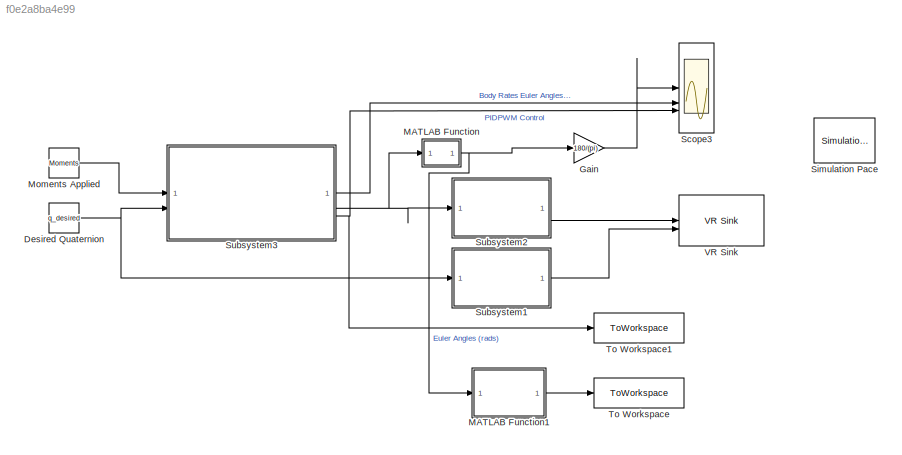
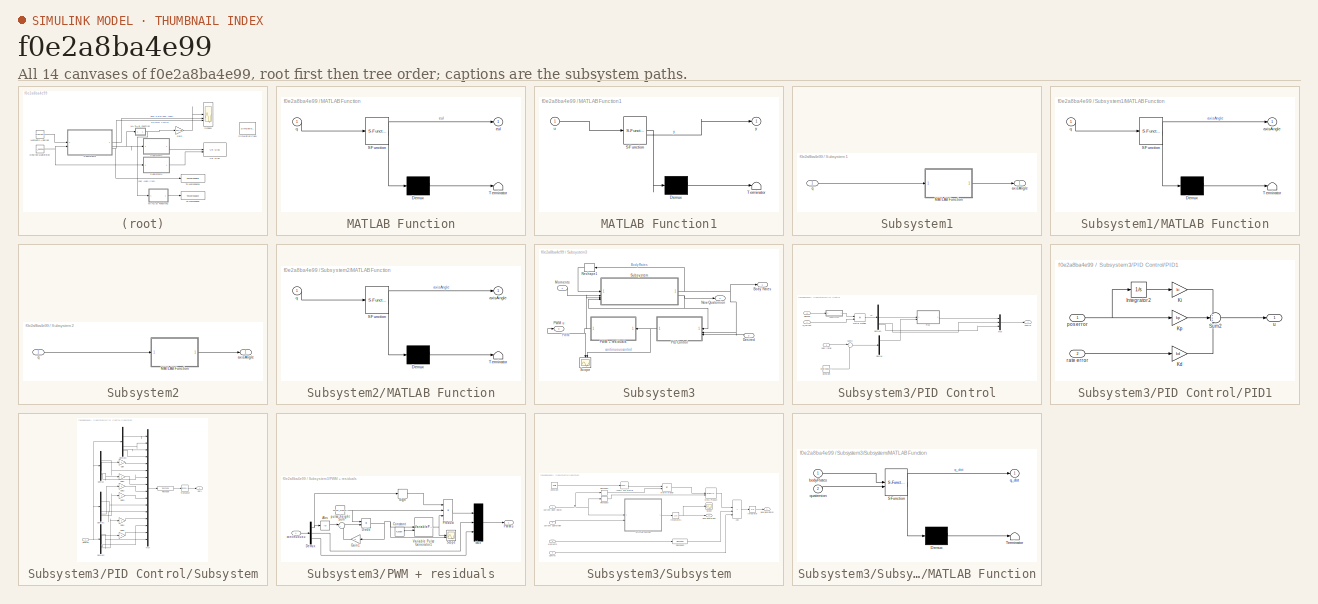
[diagram: thumbnail index - all 14 canvases of the model, root first then tree order]
MODEL slx_f0e2a8ba4e99
KIND model
CONFIG AbsTol = auto
CONFIG EnableMultiTasking = off
CONFIG FixedStep = auto
CONFIG MaxStep = auto
CONFIG MinStep = auto
CONFIG RelTol = 1e-3
CONFIG SampleTimeConstraint = Unconstrained
CONFIG SolverName = VariableStepAuto
CONFIG StartTime = 0.0
CONFIG StopTime = 4
BLOCK [Constant] Desired Quaternion
  Value = q_desired
BLOCK [Gain] Gain
  Gain = 180/(pi)
BLOCK [SubSystem] MATLAB Function
  ErrorFcn = Stateflow.Translate.translate
  PermitHierarchicalResolution = ExplicitOnly
  SFBlockType = MATLAB Function
  TreatAsAtomicUnit = on
BLOCK [Demux] MATLAB Function/ Demux 
  Outputs = 1
BLOCK [S-Function] MATLAB Function/ SFunction 
  EnableBusSupport = on
  FunctionName = sf_sfun
  PortCounts = [1 2]
  SFcnIsStateOwnerBlock = off
  SFunctionDeploymentMode = off
  Tag = Stateflow S-Function 3
BLOCK [Terminator] MATLAB Function/ Terminator 
BLOCK [Outport] MATLAB Function/eul
BLOCK [Inport] MATLAB Function/q
BLOCK [SubSystem] MATLAB Function1
  ErrorFcn = Stateflow.Translate.translate
  PermitHierarchicalResolution = ExplicitOnly
  SFBlockType = MATLAB Function
  TreatAsAtomicUnit = on
BLOCK [Demux] MATLAB Function1/ Demux 
  Outputs = 1
BLOCK [S-Function] MATLAB Function1/ SFunction 
  EnableBusSupport = on
  FunctionName = sf_sfun
  PortCounts = [1 2]
  SFcnIsStateOwnerBlock = off
  SFunctionDeploymentMode = off
  Tag = Stateflow S-Function 2
BLOCK [Terminator] MATLAB Function1/ Terminator 
BLOCK [Inport] MATLAB Function1/u
BLOCK [Outport] MATLAB Function1/y
BLOCK [Constant] Moments Applied
  Value = Moments
BLOCK [Scope] Scope3
  Floating = off
  NumInputPorts = 3
  ScopeSpecificationString = Simulink.scopes.TimeScopeBlockCfg('CurrentConfiguration', extmgr.ConfigurationSet(extmgr.Configuration('Core','General UI',true,'FigureColor',[1 1 1]),extmgr.Configuration('Core','Source UI',true),extmgr.Configuration('Sources','WiredSimulink',true),extmgr.Configuration('Visuals','Time Domain',true,'PlotType','Stairs','SerializedDisplays',{struct('MinYLimReal','-22.5','MaxYLimReal','202.5','YLabel...<+3243ch>
BLOCK [Reference] Simulation Pace  REF=aerolibanimutils/Simulation Pace
  AttributesFormatString = %<SleepMode>\n%<SimulationPace> sec/sec
  Commented = on
  SourceBlock = aerolibanimutils/Simulation Pace
  SourceType = Simulation Pace
BLOCK [SubSystem] Subsystem1
BLOCK [SubSystem] Subsystem1/MATLAB Function
  ErrorFcn = Stateflow.Translate.translate
  PermitHierarchicalResolution = ExplicitOnly
  SFBlockType = MATLAB Function
  TreatAsAtomicUnit = on
BLOCK [Demux] Subsystem1/MATLAB Function/ Demux 
  Outputs = 1
BLOCK [S-Function] Subsystem1/MATLAB Function/ SFunction 
  EnableBusSupport = on
  FunctionName = sf_sfun
  PortCounts = [1 2]
  SFcnIsStateOwnerBlock = off
  SFunctionDeploymentMode = off
  Tag = Stateflow S-Function 1
BLOCK [Terminator] Subsystem1/MATLAB Function/ Terminator 
BLOCK [Outport] Subsystem1/MATLAB Function/axisAngle
BLOCK [Inport] Subsystem1/MATLAB Function/q
BLOCK [Outport] Subsystem1/axisAngle
BLOCK [Inport] Subsystem1/q
BLOCK [SubSystem] Subsystem2
BLOCK [SubSystem] Subsystem2/MATLAB Function
  ErrorFcn = Stateflow.Translate.translate
  PermitHierarchicalResolution = ExplicitOnly
  SFBlockType = MATLAB Function
  TreatAsAtomicUnit = on
BLOCK [Demux] Subsystem2/MATLAB Function/ Demux 
  Outputs = 1
BLOCK [S-Function] Subsystem2/MATLAB Function/ SFunction 
  EnableBusSupport = on
  FunctionName = sf_sfun
  PortCounts = [1 2]
  SFcnIsStateOwnerBlock = off
  SFunctionDeploymentMode = off
  Tag = Stateflow S-Function 5
BLOCK [Terminator] Subsystem2/MATLAB Function/ Terminator 
BLOCK [Outport] Subsystem2/MATLAB Function/axisAngle
BLOCK [Inport] Subsystem2/MATLAB Function/q
BLOCK [Outport] Subsystem2/axisAngle
BLOCK [Inport] Subsystem2/q
BLOCK [SubSystem] Subsystem3
BLOCK [Outport] Subsystem3/Body Rates
BLOCK [Inport] Subsystem3/Desired
  Port = 2
BLOCK [Inport] Subsystem3/Moments
BLOCK [Outport] Subsystem3/New Quaternion
  Port = 2
BLOCK [SubSystem] Subsystem3/PID Control
BLOCK [Constant] Subsystem3/PID Control/Constant
  Value = desiredBodyRates
BLOCK [Outport] Subsystem3/PID Control/Control
BLOCK [Demux] Subsystem3/PID Control/Demux
  Outputs = 3
BLOCK [Demux] Subsystem3/PID Control/Demux1
BLOCK [Inport] Subsystem3/PID Control/Desired
  Port = 3
BLOCK [Product] Subsystem3/PID Control/Matrix Multiply
  Multiplication = Matrix(*)
BLOCK [Mux] Subsystem3/PID Control/Mux
  DisplayOption = bar
  Inputs = 3
BLOCK [SubSystem] Subsystem3/PID Control/PID1
BLOCK [Integrator] Subsystem3/PID Control/PID1/Integrator2
BLOCK [Gain] Subsystem3/PID Control/PID1/Kd
  Gain = kd
BLOCK [Gain] Subsystem3/PID Control/PID1/Ki
  Gain = ki
BLOCK [Gain] Subsystem3/PID Control/PID1/Kp
  Gain = kp
BLOCK [Sum] Subsystem3/PID Control/PID1/Sum2
  Inputs = +++
BLOCK [Inport] Subsystem3/PID Control/PID1/pos error
BLOCK [Inport] Subsystem3/PID Control/PID1/rate error
  Port = 2
BLOCK [Outport] Subsystem3/PID Control/PID1/u
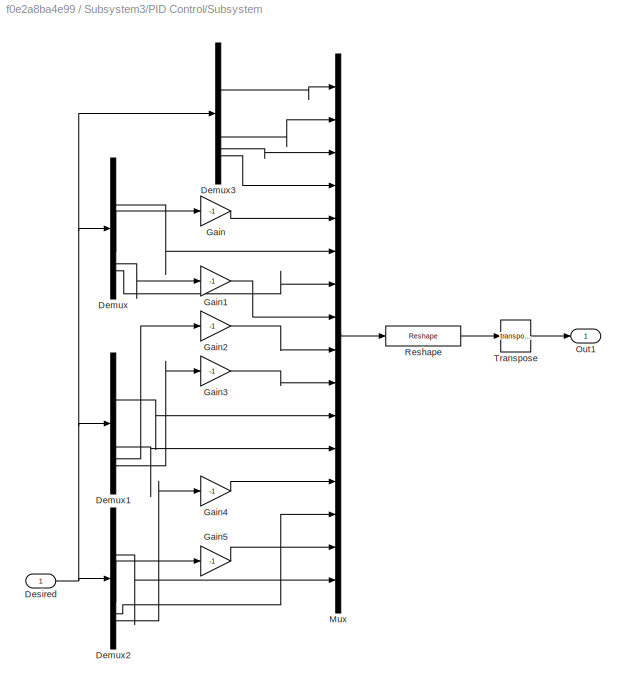
BLOCK [SubSystem] Subsystem3/PID Control/Subsystem
BLOCK [Demux] Subsystem3/PID Control/Subsystem/Demux
BLOCK [Demux] Subsystem3/PID Control/Subsystem/Demux1
BLOCK [Demux] Subsystem3/PID Control/Subsystem/Demux2
BLOCK [Demux] Subsystem3/PID Control/Subsystem/Demux3
BLOCK [Inport] Subsystem3/PID Control/Subsystem/Desired
BLOCK [Gain] Subsystem3/PID Control/Subsystem/Gain
  Gain = -1
BLOCK [Gain] Subsystem3/PID Control/Subsystem/Gain1
  Gain = -1
BLOCK [Gain] Subsystem3/PID Control/Subsystem/Gain2
  Gain = -1
BLOCK [Gain] Subsystem3/PID Control/Subsystem/Gain3
  Gain = -1
BLOCK [Gain] Subsystem3/PID Control/Subsystem/Gain4
  Gain = -1
BLOCK [Gain] Subsystem3/PID Control/Subsystem/Gain5
  Gain = -1
BLOCK [Mux] Subsystem3/PID Control/Subsystem/Mux
  DisplayOption = bar
  Inputs = 16
BLOCK [Outport] Subsystem3/PID Control/Subsystem/Out1
BLOCK [Reshape] Subsystem3/PID Control/Subsystem/Reshape
  OutputDimensionality = Customize
  OutputDimensions = [4,4]
BLOCK [Math] Subsystem3/PID Control/Subsystem/Transpose
  Operator = transpose
BLOCK [Sum] Subsystem3/PID Control/Sum3
  Inputs = |+-
BLOCK [Inport] Subsystem3/PID Control/body rates
  Port = 2
BLOCK [Inport] Subsystem3/PID Control/q_current
BLOCK [SubSystem] Subsystem3/PWM + residuals
BLOCK [Abs] Subsystem3/PWM + residuals/Abs
  SaturateOnIntegerOverflow = off
BLOCK [Constant] Subsystem3/PWM + residuals/Constant
  Value = P_pulse
BLOCK [Demux] Subsystem3/PWM + residuals/Demux
  Outputs = 3
BLOCK [Product] Subsystem3/PWM + residuals/Divide
  Inputs = /*
BLOCK [Gain] Subsystem3/PWM + residuals/Gain1
  NameLocation = top
BLOCK [Mux] Subsystem3/PWM + residuals/Mux
  DisplayOption = bar
  Inputs = 3
BLOCK [Outport] Subsystem3/PWM + residuals/PWM u
BLOCK [Product] Subsystem3/PWM + residuals/Product
  Inputs = 3
BLOCK [Scope] Subsystem3/PWM + residuals/Scope
  Floating = off
  NumInputPorts = 2
  ScopeSpecificationString = Simulink.scopes.TimeScopeBlockCfg('CurrentConfiguration', extmgr.ConfigurationSet(extmgr.Configuration('Core','General UI',true),extmgr.Configuration('Core','Source UI',true),extmgr.Configuration('Sources','WiredSimulink',true,'DataLoggingVariableName','ScopeData4'),extmgr.Configuration('Visuals','Time Domain',true,'SerializedDisplays',{struct('MinYLimReal','-11.87141','MaxYLimReal','94.9871','YLa...<+1559ch>
BLOCK [Signum] Subsystem3/PWM + residuals/Sign
BLOCK [Sum] Subsystem3/PWM + residuals/Sum
  Inputs = |++
BLOCK [VariablePulseGenerator] Subsystem3/PWM + residuals/Variable Pulse Generator1
  AllowZeroPulseWidth = on
  SampleTime = 0.1
BLOCK [Inport] Subsystem3/PWM + residuals/continuous u
BLOCK [Constant] Subsystem3/PWM + residuals/pulse height
  Value = Thrust_Moment
BLOCK [Outport] Subsystem3/PWM u
  Port = 3
BLOCK [Reshape] Subsystem3/Reshape1
  OutputDimensionality = Customize
  OutputDimensions = [1,3]
BLOCK [Scope] Subsystem3/Scope
  Floating = off
  NameLocation = left
  NumInputPorts = 2
  ScopeSpecificationString = Simulink.scopes.TimeScopeBlockCfg('CurrentConfiguration', extmgr.ConfigurationSet(extmgr.Configuration('Core','General UI',true),extmgr.Configuration('Core','Source UI',true),extmgr.Configuration('Sources','WiredSimulink',true,'DataLoggingVariableName','ScopeData1'),extmgr.Configuration('Visuals','Time Domain',true,'SerializedDisplays',{struct('MinYLimReal','-62.5','MaxYLimReal','62.5','YLabelReal...<+1524ch>
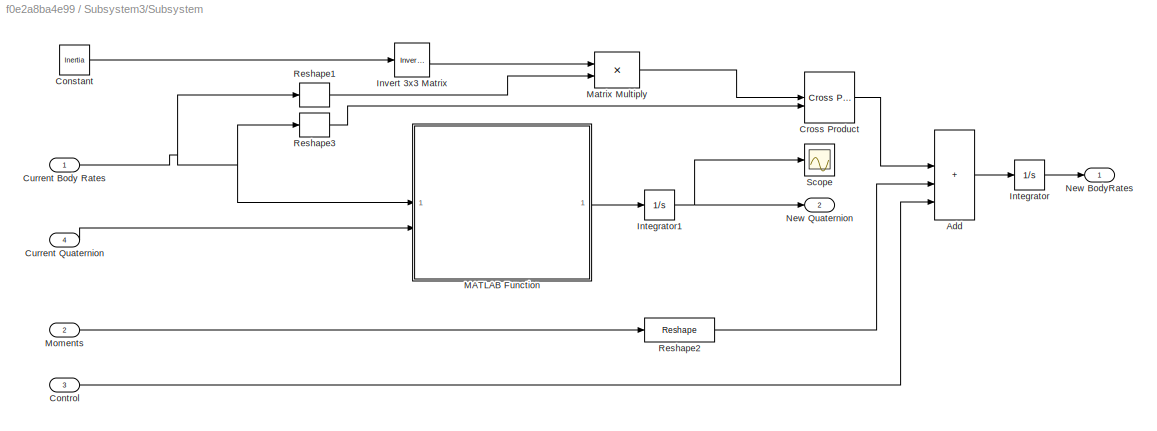
BLOCK [SubSystem] Subsystem3/Subsystem
BLOCK [Sum] Subsystem3/Subsystem/Add
  IconShape = rectangular
  Inputs = ++++
BLOCK [Constant] Subsystem3/Subsystem/Constant
  Value = Inertia
BLOCK [Inport] Subsystem3/Subsystem/Control
  Port = 3
BLOCK [Reference] Subsystem3/Subsystem/Cross Product  REF=matrix_library/Cross Product
  SourceBlock = matrix_library/Cross Product
  SourceType = CrossProduct
BLOCK [Inport] Subsystem3/Subsystem/Current Body Rates
BLOCK [Inport] Subsystem3/Subsystem/Current Quaternion
  Port = 4
BLOCK [Integrator] Subsystem3/Subsystem/Integrator
  InitialCondition = pqr_0
BLOCK [Integrator] Subsystem3/Subsystem/Integrator1
  InitialCondition = q_0
BLOCK [Reference] Subsystem3/Subsystem/Invert 3x3 Matrix  REF=aerolibutil/Invert 
3x3 Matrix
  SourceBlock = aerolibutil/Invert \n3x3 Matrix
  SourceType = Invert 3x3 Matrix
BLOCK [SubSystem] Subsystem3/Subsystem/MATLAB Function
  ErrorFcn = Stateflow.Translate.translate
  PermitHierarchicalResolution = ExplicitOnly
  SFBlockType = MATLAB Function
  TreatAsAtomicUnit = on
BLOCK [Demux] Subsystem3/Subsystem/MATLAB Function/ Demux 
  Outputs = 1
BLOCK [S-Function] Subsystem3/Subsystem/MATLAB Function/ SFunction 
  EnableBusSupport = on
  FunctionName = sf_sfun
  PortCounts = [2 2]
  SFcnIsStateOwnerBlock = off
  SFunctionDeploymentMode = off
  Tag = Stateflow S-Function 8
BLOCK [Terminator] Subsystem3/Subsystem/MATLAB Function/ Terminator 
BLOCK [Inport] Subsystem3/Subsystem/MATLAB Function/bodyRates
BLOCK [Outport] Subsystem3/Subsystem/MATLAB Function/q_dot
BLOCK [Inport] Subsystem3/Subsystem/MATLAB Function/quaternion
  Port = 2
BLOCK [Product] Subsystem3/Subsystem/Matrix Multiply
  Multiplication = Matrix(*)
BLOCK [Inport] Subsystem3/Subsystem/Moments
  Port = 2
BLOCK [Outport] Subsystem3/Subsystem/New BodyRates
BLOCK [Outport] Subsystem3/Subsystem/New Quaternion
  Port = 2
BLOCK [Reshape] Subsystem3/Subsystem/Reshape1
  OutputDimensionality = Customize
  OutputDimensions = [3,1]
BLOCK [Reshape] Subsystem3/Subsystem/Reshape2
  OutputDimensionality = Customize
  OutputDimensions = [3,1]
BLOCK [Reshape] Subsystem3/Subsystem/Reshape3
  OutputDimensionality = Customize
  OutputDimensions = [3,1]
BLOCK [Scope] Subsystem3/Subsystem/Scope
  Floating = off
  NumInputPorts = 1
  ScopeSpecificationString = Simulink.scopes.TimeScopeBlockCfg('CurrentConfiguration', extmgr.ConfigurationSet(extmgr.Configuration('Core','General UI',true),extmgr.Configuration('Core','Source UI',true),extmgr.Configuration('Sources','WiredSimulink',true,'DataLoggingVariableName','ScopeData1'),extmgr.Configuration('Visuals','Time Domain',true,'SerializedDisplays',{struct('MinYLimReal','-0.125','MaxYLimReal','1.125','YLabelRe...<+1586ch>
BLOCK [ToWorkspace] To Workspace
  FixptAsFi = on
  MaxDataPoints = inf
  SampleTime = -1
  SaveFormat = Timeseries
  VariableName = eulerVsT
BLOCK [ToWorkspace] To Workspace1
  FixptAsFi = on
  MaxDataPoints = inf
  SampleTime = -1
  SaveFormat = Timeseries
  VariableName = Control
BLOCK [Reference] VR Sink  REF=vrlib/VR Sink
  InstantiateOnLoad = on
  SourceBlock = vrlib/VR Sink
  SourceType = Virtual Reality Sink
NET Desired Quaternion:1 -> Subsystem1:1, Subsystem3:2
LINE Gain:1 -> Scope3:1
LINE MATLAB Function1:1 -> To Workspace:1
NET MATLAB Function:1 -> Gain:1, MATLAB Function1:1
LINE Moments Applied:1 -> Subsystem3:1
LINE Subsystem1/MATLAB Function:1 -> Subsystem1/axisAngle:1
LINE Subsystem1/q:1 -> Subsystem1/MATLAB Function:1
LINE Subsystem1:1 -> VR Sink:2
LINE Subsystem2/MATLAB Function:1 -> Subsystem2/axisAngle:1
LINE Subsystem2/q:1 -> Subsystem2/MATLAB Function:1
LINE Subsystem2:1 -> VR Sink:1
LINE Subsystem3/Desired:1 -> Subsystem3/PID Control:3
LINE Subsystem3/Moments:1 -> Subsystem3/Subsystem:2
LINE Subsystem3/PID Control/Constant:1 -> Subsystem3/PID Control/Sum3:2
LINE Subsystem3/PID Control/Demux1:2 -> Subsystem3/PID Control/PID1:1
LINE Subsystem3/PID Control/Demux1:3 -> Subsystem3/PID Control/Mux:2
LINE Subsystem3/PID Control/Demux1:4 -> Subsystem3/PID Control/Mux:3
LINE Subsystem3/PID Control/Demux:1 -> Subsystem3/PID Control/PID1:2
LINE Subsystem3/PID Control/Desired:1 -> Subsystem3/PID Control/Subsystem:1
LINE Subsystem3/PID Control/Matrix Multiply:1 -> Subsystem3/PID Control/Demux1:1
LINE Subsystem3/PID Control/Mux:1 -> Subsystem3/PID Control/Control:1
LINE Subsystem3/PID Control/PID1/Integrator2:1 -> Subsystem3/PID Control/PID1/Ki:1
LINE Subsystem3/PID Control/PID1/Kd:1 -> Subsystem3/PID Control/PID1/Sum2:3
LINE Subsystem3/PID Control/PID1/Ki:1 -> Subsystem3/PID Control/PID1/Sum2:1
LINE Subsystem3/PID Control/PID1/Kp:1 -> Subsystem3/PID Control/PID1/Sum2:2
LINE Subsystem3/PID Control/PID1/Sum2:1 -> Subsystem3/PID Control/PID1/u:1
NET Subsystem3/PID Control/PID1/pos error:1 -> Subsystem3/PID Control/PID1/Integrator2:1, Subsystem3/PID Control/PID1/Kp:1
LINE Subsystem3/PID Control/PID1/rate error:1 -> Subsystem3/PID Control/PID1/Kd:1
LINE Subsystem3/PID Control/PID1:1 -> Subsystem3/PID Control/Mux:1
LINE Subsystem3/PID Control/Subsystem/Demux1:1 -> Subsystem3/PID Control/Subsystem/Mux:11
LINE Subsystem3/PID Control/Subsystem/Demux1:2 -> Subsystem3/PID Control/Subsystem/Mux:12
LINE Subsystem3/PID Control/Subsystem/Demux1:3 -> Subsystem3/PID Control/Subsystem/Gain2:1
LINE Subsystem3/PID Control/Subsystem/Demux1:4 -> Subsystem3/PID Control/Subsystem/Gain3:1
LINE Subsystem3/PID Control/Subsystem/Demux2:1 -> Subsystem3/PID Control/Subsystem/Mux:16
LINE Subsystem3/PID Control/Subsystem/Demux2:2 -> Subsystem3/PID Control/Subsystem/Gain5:1
LINE Subsystem3/PID Control/Subsystem/Demux2:3 -> Subsystem3/PID Control/Subsystem/Mux:14
LINE Subsystem3/PID Control/Subsystem/Demux2:4 -> Subsystem3/PID Control/Subsystem/Gain4:1
LINE Subsystem3/PID Control/Subsystem/Demux3:1 -> Subsystem3/PID Control/Subsystem/Mux:1
LINE Subsystem3/PID Control/Subsystem/Demux3:2 -> Subsystem3/PID Control/Subsystem/Mux:2
LINE Subsystem3/PID Control/Subsystem/Demux3:3 -> Subsystem3/PID Control/Subsystem/Mux:3
LINE Subsystem3/PID Control/Subsystem/Demux3:4 -> Subsystem3/PID Control/Subsystem/Mux:4
LINE Subsystem3/PID Control/Subsystem/Demux:1 -> Subsystem3/PID Control/Subsystem/Mux:6
LINE Subsystem3/PID Control/Subsystem/Demux:2 -> Subsystem3/PID Control/Subsystem/Gain:1
LINE Subsystem3/PID Control/Subsystem/Demux:3 -> Subsystem3/PID Control/Subsystem/Gain1:1
LINE Subsystem3/PID Control/Subsystem/Demux:4 -> Subsystem3/PID Control/Subsystem/Mux:7
NET Subsystem3/PID Control/Subsystem/Desired:1 -> Subsystem3/PID Control/Subsystem/Demux1:1, Subsystem3/PID Control/Subsystem/Demux2:1, Subsystem3/PID Control/Subsystem/Demux3:1, Subsystem3/PID Control/Subsystem/Demux:1
LINE Subsystem3/PID Control/Subsystem/Gain1:1 -> Subsystem3/PID Control/Subsystem/Mux:8
LINE Subsystem3/PID Control/Subsystem/Gain2:1 -> Subsystem3/PID Control/Subsystem/Mux:9
LINE Subsystem3/PID Control/Subsystem/Gain3:1 -> Subsystem3/PID Control/Subsystem/Mux:10
LINE Subsystem3/PID Control/Subsystem/Gain4:1 -> Subsystem3/PID Control/Subsystem/Mux:13
LINE Subsystem3/PID Control/Subsystem/Gain5:1 -> Subsystem3/PID Control/Subsystem/Mux:15
LINE Subsystem3/PID Control/Subsystem/Gain:1 -> Subsystem3/PID Control/Subsystem/Mux:5
LINE Subsystem3/PID Control/Subsystem/Mux:1 -> Subsystem3/PID Control/Subsystem/Reshape:1
LINE Subsystem3/PID Control/Subsystem/Reshape:1 -> Subsystem3/PID Control/Subsystem/Transpose:1
LINE Subsystem3/PID Control/Subsystem/Transpose:1 -> Subsystem3/PID Control/Subsystem/Out1:1
LINE Subsystem3/PID Control/Subsystem:1 -> Subsystem3/PID Control/Matrix Multiply:1
LINE Subsystem3/PID Control/Sum3:1 -> Subsystem3/PID Control/Demux:1
LINE Subsystem3/PID Control/body rates:1 -> Subsystem3/PID Control/Sum3:1
LINE Subsystem3/PID Control/q_current:1 -> Subsystem3/PID Control/Matrix Multiply:2
NET Subsystem3/PID Control:1 -> Subsystem3/PWM + residuals:1, Subsystem3/Scope:2
LINE Subsystem3/PWM + residuals/Abs:1 -> Subsystem3/PWM + residuals/Sum:1
LINE Subsystem3/PWM + residuals/Constant:1 -> Subsystem3/PWM + residuals/Variable Pulse Generator1:2
NET Subsystem3/PWM + residuals/Demux:1 -> Subsystem3/PWM + residuals/Abs:1, Subsystem3/PWM + residuals/Sign:1
LINE Subsystem3/PWM + residuals/Demux:2 -> Subsystem3/PWM + residuals/Mux:2
LINE Subsystem3/PWM + residuals/Demux:3 -> Subsystem3/PWM + residuals/Mux:3
NET Subsystem3/PWM + residuals/Divide:1 -> Subsystem3/PWM + residuals/Gain1:1, Subsystem3/PWM + residuals/Scope:2, Subsystem3/PWM + residuals/Variable Pulse Generator1:1
LINE Subsystem3/PWM + residuals/Gain1:1 -> Subsystem3/PWM + residuals/Sum:2
LINE Subsystem3/PWM + residuals/Mux:1 -> Subsystem3/PWM + residuals/PWM u:1
LINE Subsystem3/PWM + residuals/Product:1 -> Subsystem3/PWM + residuals/Mux:1
LINE Subsystem3/PWM + residuals/Sign:1 -> Subsystem3/PWM + residuals/Product:1
LINE Subsystem3/PWM + residuals/Sum:1 -> Subsystem3/PWM + residuals/Divide:2
NET Subsystem3/PWM + residuals/Variable Pulse Generator1:1 -> Subsystem3/PWM + residuals/Product:3, Subsystem3/PWM + residuals/Scope:1
LINE Subsystem3/PWM + residuals/continuous u:1 -> Subsystem3/PWM + residuals/Demux:1
NET Subsystem3/PWM + residuals/pulse height:1 -> Subsystem3/PWM + residuals/Divide:1, Subsystem3/PWM + residuals/Product:2
NET Subsystem3/PWM + residuals:1 -> Subsystem3/PWM u:1, Subsystem3/Scope:1, Subsystem3/Subsystem:3
LINE Subsystem3/Reshape1:1 -> Subsystem3/Subsystem:1
LINE Subsystem3/Subsystem/Add:1 -> Subsystem3/Subsystem/Integrator:1
LINE Subsystem3/Subsystem/Constant:1 -> Subsystem3/Subsystem/Invert 3x3 Matrix:1
LINE Subsystem3/Subsystem/Control:1 -> Subsystem3/Subsystem/Add:4
LINE Subsystem3/Subsystem/Cross Product:1 -> Subsystem3/Subsystem/Add:2
NET Subsystem3/Subsystem/Current Body Rates:1 -> Subsystem3/Subsystem/MATLAB Function:1, Subsystem3/Subsystem/Reshape1:1, Subsystem3/Subsystem/Reshape3:1
LINE Subsystem3/Subsystem/Current Quaternion:1 -> Subsystem3/Subsystem/MATLAB Function:2
NET Subsystem3/Subsystem/Integrator1:1 -> Subsystem3/Subsystem/New Quaternion:1, Subsystem3/Subsystem/Scope:1
LINE Subsystem3/Subsystem/Integrator:1 -> Subsystem3/Subsystem/New BodyRates:1
LINE Subsystem3/Subsystem/Invert 3x3 Matrix:1 -> Subsystem3/Subsystem/Matrix Multiply:1
LINE Subsystem3/Subsystem/MATLAB Function:1 -> Subsystem3/Subsystem/Integrator1:1
LINE Subsystem3/Subsystem/Matrix Multiply:1 -> Subsystem3/Subsystem/Cross Product:1
LINE Subsystem3/Subsystem/Moments:1 -> Subsystem3/Subsystem/Reshape2:1
LINE Subsystem3/Subsystem/Reshape1:1 -> Subsystem3/Subsystem/Matrix Multiply:2
LINE Subsystem3/Subsystem/Reshape2:1 -> Subsystem3/Subsystem/Add:3
LINE Subsystem3/Subsystem/Reshape3:1 -> Subsystem3/Subsystem/Cross Product:2
NET Subsystem3/Subsystem:1 -> Subsystem3/Body Rates:1, Subsystem3/PID Control:2, Subsystem3/Reshape1:1
NET Subsystem3/Subsystem:2 -> Subsystem3/New Quaternion:1, Subsystem3/PID Control:1, Subsystem3/Subsystem:4
LINE Subsystem3:1 -> Scope3:2
NET Subsystem3:2 -> MATLAB Function:1, Subsystem2:1
NET Subsystem3:3 -> Scope3:3, To Workspace1:1
note: NET lines group one-source signal fan-out (src -> all destinations, sorted); 1:1 wires keep LINE
CHART MATLAB Function1 states=1 transitions=1
  STATE_LABEL 'eML_blk_kernel()'
  STATE_LABEL 'SCRIPT:\nfunction y = fcn(u)\n    \ny = u(1);\n'
CHART MATLAB Function states=1 transitions=1
  STATE_LABEL 'eML_blk_kernel()'
  STATE_LABEL "SCRIPT:\nfunction eul = Quaternion_To_Euler(q)\n   \n    qw = q(4);\n    qx = q(1);\n    qy = q(2);\n    qz = q(3);\n    q_mag = qw^2 +qx^2 +qy^2 +qz^2;\n    \n    q = q./q_mag;\n    \n    % Pre-allocate output\n    eul = zeros(1, 3, 'like', q);\n    \n    % Cap all inputs to asin to 1, since values >1 produce complex\n    % results\n    % Since the quaternion is of unit length, this should never happen,\n    % bu...<+901ch>"
CHART Subsystem2/MATLAB Function states=1 transitions=1
  STATE_LABEL 'eML_blk_kernel()'
  STATE_LABEL 'SCRIPT:\n\nfunction axisAngle = Quaternion_To_AxisAngle(q)\n    for  i = 1:4\n        if q(i) > 1 \n            q(i) = 1.0;\n            disp(q)\n        end\n    end\n\n    qw = q(1);\n    qx = q(2);\n    qy = q(3);\n    qz = q(4);\n  \n\n    theta = 2*acos(qw);\n\n    if theta == 0 \n        x = 1;\n        y = 0;\n        z = 0;\n    else\n        x = qx/(sin(theta/2));\n        y = qy/(sin(theta/2));\n        z = qz/(...<+135ch>'
CHART Subsystem3/Subsystem/MATLAB Function states=1 transitions=1
  STATE_LABEL 'eML_blk_kernel()'
  STATE_LABEL 'SCRIPT:\nfunction q_dot = getBodyRates(bodyRates,quaternion)\n\n    p = bodyRates(1);\n    q = bodyRates(2); \n    r = bodyRates(3);\n    \n    half_Q_Matrix =   0.5 * [  0, -p, -q, -r\n                               p,  0,  r, -q\n                               q, -r,  0,  p\n                               r,  q, -p,  0];\n                \n    qVec  =  [quaternion(1); quaternion(2); quaternion(3); quaternio...<+57ch>'
CHART Subsystem1/MATLAB Function states=1 transitions=1
  STATE_LABEL 'eML_blk_kernel()'
  STATE_LABEL 'SCRIPT:\n\nfunction axisAngle = Quaternion_To_AxisAngle(q)\n    for  i = 1:4\n        if q(i) > 1 \n            q(i) = 1.0;\n            disp(q)\n        end\n    end\n\n    qw = q(1);\n    qx = q(2);\n    qy = q(3);\n    qz = q(4);\n  \n\n    theta = 2*acos(qw);\n\n    if theta == 0 \n        x = 1;\n        y = 0;\n        z = 0;\n    else\n        x = qx/(sin(theta/2));\n        y = qy/(sin(theta/2));\n        z = qz/(...<+135ch>'
CHART  states=0 transitions=0
CHART  states=0 transitions=0
CHART  states=0 transitions=0
CHART  states=0 transitions=0
CHART  states=0 transitions=0
